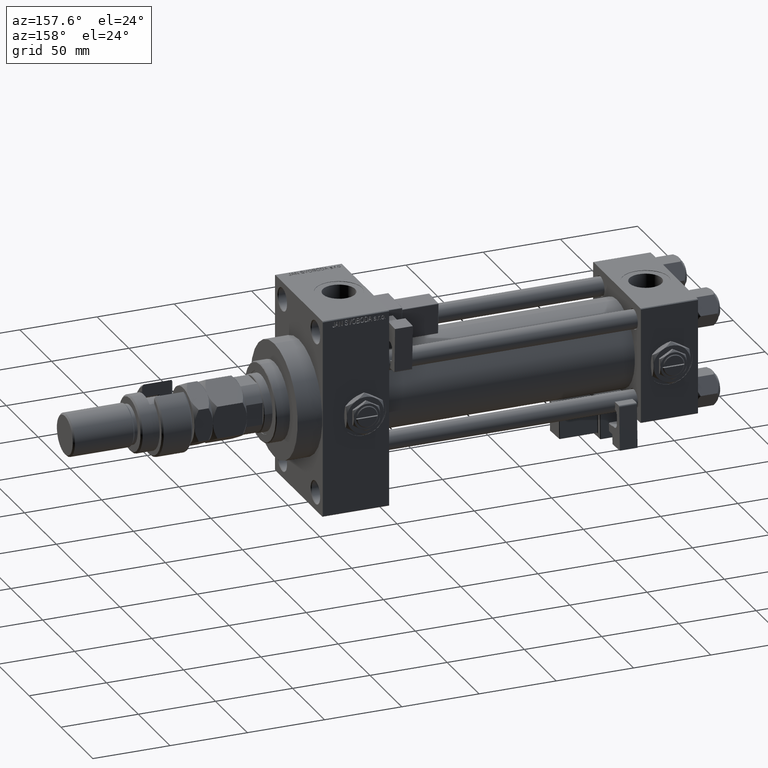
[diagram: clean part render]
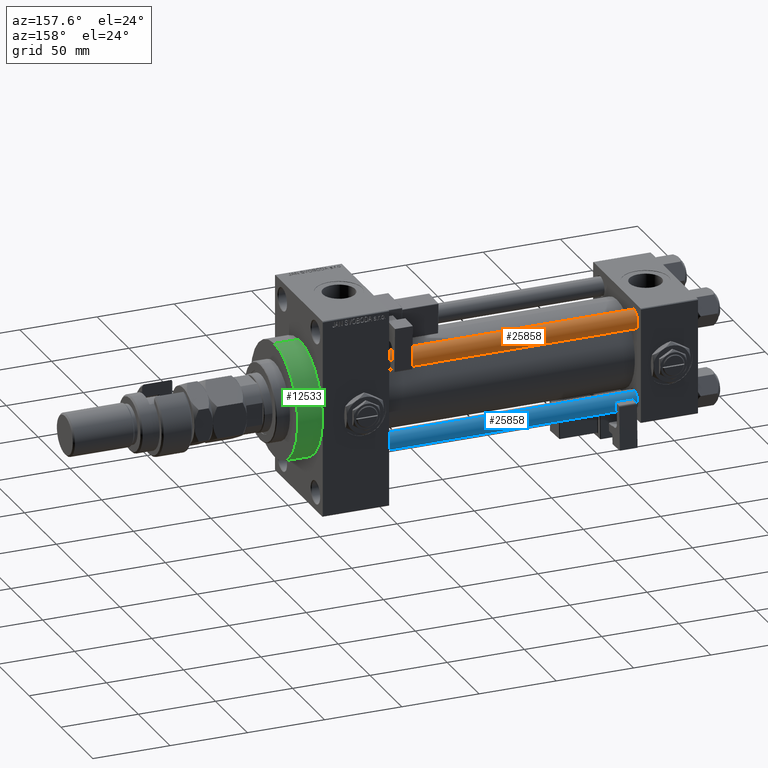
[diagram: same view with three faces highlighted in distinct colors, each labeled with its STEP entity id]
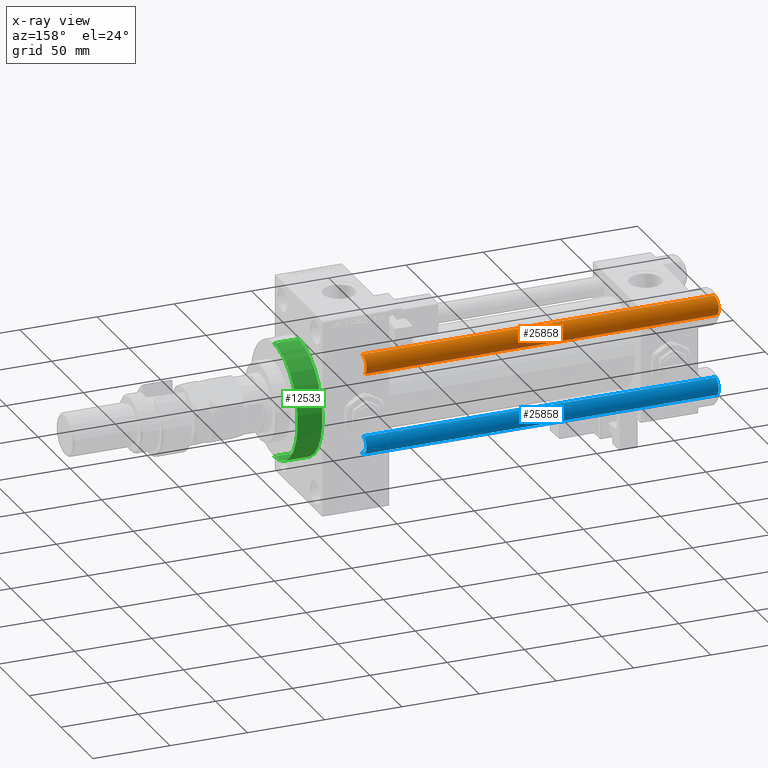
[diagram: x-ray of the same camera — body ghosted, the three highlighted faces saturated]
A machine part, auxiliary view with three faces highlighted in distinct colors.
The next image is the same camera in x-ray (body ghosted, the three faces saturated) — at least one of them is partly hidden behind the body in this view.
Their STEP definitions:

[orange] entity #25858 — the highlighted cylindrical surface (edge-blend (fillet) strip) has radius 6 mm, axis along (-1, -0, 0).
#2996 = VERTEX_POINT ( 'NONE', #53825 ) ;
#3474 = DIRECTION ( 'NONE',  ( 1.000000000000000000, 0.000000000000000000, 0.000000000000000000 ) ) ;
#3837 = CIRCLE ( 'NONE', #48616, 6.000000000000000888 ) ;
#5272 = AXIS2_PLACEMENT_3D ( 'NONE', #7165, #53376, #40715 ) ;
#7165 = CARTESIAN_POINT ( 'NONE',  ( 0.000000000000000000, 0.000000000000000000, 229.0000000000000000 ) ) ;
#8047 = ORIENTED_EDGE ( 'NONE', *, *, #52335, .T. ) ;
#9769 = VECTOR ( 'NONE', #27152, 1000.000000000000000 ) ;
#9774 = VERTEX_POINT ( 'NONE', #14322 ) ;
#12101 = FACE_OUTER_BOUND ( 'NONE', #40924, .T. ) ;
#13888 = LINE ( 'NONE', #34542, #22445 ) ;
#14322 = CARTESIAN_POINT ( 'NONE',  ( 6.000000000000000888, 7.347880794884119736E-16, 0.5000000000001392220 ) ) ;
#14913 = AXIS2_PLACEMENT_3D ( 'NONE', #24605, #42173, #29536 ) ;
#15026 = CARTESIAN_POINT ( 'NONE',  ( -6.000000000000000888, 0.000000000000000000, 229.0000000000000000 ) ) ;
#16337 = CARTESIAN_POINT ( 'NONE',  ( -6.000000000000000888, 0.000000000000000000, 228.5000000000001137 ) ) ;
#20555 = CARTESIAN_POINT ( 'NONE',  ( 6.000000000000000888, 7.347880794884119736E-16, 228.5000000000001137 ) ) ;
#21238 = VERTEX_POINT ( 'NONE', #16337 ) ;
#22445 = VECTOR ( 'NONE', #51602, 1000.000000000000000 ) ;
#22493 = VERTEX_POINT ( 'NONE', #20555 ) ;
#24605 = CARTESIAN_POINT ( 'NONE',  ( 0.000000000000000000, 0.000000000000000000, 228.5000000000001137 ) ) ;
#25858 = ADVANCED_FACE ( 'NONE', ( #12101 ), #44855, .T. ) ;
#27152 = DIRECTION ( 'NONE',  ( -0.000000000000000000, -0.000000000000000000, -1.000000000000000000 ) ) ;
#27220 = CIRCLE ( 'NONE', #14913, 6.000000000000000888 ) ;
#28331 = EDGE_CURVE ( 'NONE', #21238, #2996, #52736, .T. ) ;
#29536 = DIRECTION ( 'NONE',  ( 1.000000000000000000, 0.000000000000000000, 0.000000000000000000 ) ) ;
#32989 = ORIENTED_EDGE ( 'NONE', *, *, #28331, .F. ) ;
#34542 = CARTESIAN_POINT ( 'NONE',  ( 6.000000000000000888, 7.347880794884119736E-16, 229.0000000000000000 ) ) ;
#35511 = ORIENTED_EDGE ( 'NONE', *, *, #37177, .T. ) ;
#37016 = DIRECTION ( 'NONE',  ( -0.000000000000000000, -0.000000000000000000, 1.000000000000000000 ) ) ;
#37177 = EDGE_CURVE ( 'NONE', #21238, #22493, #27220, .T. ) ;
#40715 = DIRECTION ( 'NONE',  ( -1.000000000000000000, 0.000000000000000000, 0.000000000000000000 ) ) ;
#40924 = EDGE_LOOP ( 'NONE', ( #35511, #8047, #42233, #32989 ) ) ;
#41675 = CARTESIAN_POINT ( 'NONE',  ( 0.000000000000000000, 0.000000000000000000, 0.5000000000001392220 ) ) ;
#42173 = DIRECTION ( 'NONE',  ( 0.000000000000000000, 0.000000000000000000, -1.000000000000000000 ) ) ;
#42233 = ORIENTED_EDGE ( 'NONE', *, *, #43626, .T. ) ;
#43626 = EDGE_CURVE ( 'NONE', #9774, #2996, #3837, .T. ) ;
#44855 = CYLINDRICAL_SURFACE ( 'NONE', #5272, 6.000000000000000888 ) ;
#48616 = AXIS2_PLACEMENT_3D ( 'NONE', #41675, #37016, #3474 ) ;
#51602 = DIRECTION ( 'NONE',  ( -0.000000000000000000, -0.000000000000000000, -1.000000000000000000 ) ) ;
#52335 = EDGE_CURVE ( 'NONE', #22493, #9774, #13888, .T. ) ;
#52736 = LINE ( 'NONE', #15026, #9769 ) ;
#53376 = DIRECTION ( 'NONE',  ( -0.000000000000000000, -0.000000000000000000, -1.000000000000000000 ) ) ;
#53825 = CARTESIAN_POINT ( 'NONE',  ( -6.000000000000000888, 0.000000000000000000, 0.5000000000001392220 ) ) ;

[blue] entity #25858 — the highlighted cylindrical surface (edge-blend (fillet) strip) has radius 6 mm, axis along (1, -0, 0).
#2996 = VERTEX_POINT ( 'NONE', #53825 ) ;
#3474 = DIRECTION ( 'NONE',  ( 1.000000000000000000, 0.000000000000000000, 0.000000000000000000 ) ) ;
#3837 = CIRCLE ( 'NONE', #48616, 6.000000000000000888 ) ;
#5272 = AXIS2_PLACEMENT_3D ( 'NONE', #7165, #53376, #40715 ) ;
#7165 = CARTESIAN_POINT ( 'NONE',  ( 0.000000000000000000, 0.000000000000000000, 229.0000000000000000 ) ) ;
#8047 = ORIENTED_EDGE ( 'NONE', *, *, #52335, .T. ) ;
#9769 = VECTOR ( 'NONE', #27152, 1000.000000000000000 ) ;
#9774 = VERTEX_POINT ( 'NONE', #14322 ) ;
#12101 = FACE_OUTER_BOUND ( 'NONE', #40924, .T. ) ;
#13888 = LINE ( 'NONE', #34542, #22445 ) ;
#14322 = CARTESIAN_POINT ( 'NONE',  ( 6.000000000000000888, 7.347880794884119736E-16, 0.5000000000001392220 ) ) ;
#14913 = AXIS2_PLACEMENT_3D ( 'NONE', #24605, #42173, #29536 ) ;
#15026 = CARTESIAN_POINT ( 'NONE',  ( -6.000000000000000888, 0.000000000000000000, 229.0000000000000000 ) ) ;
#16337 = CARTESIAN_POINT ( 'NONE',  ( -6.000000000000000888, 0.000000000000000000, 228.5000000000001137 ) ) ;
#20555 = CARTESIAN_POINT ( 'NONE',  ( 6.000000000000000888, 7.347880794884119736E-16, 228.5000000000001137 ) ) ;
#21238 = VERTEX_POINT ( 'NONE', #16337 ) ;
#22445 = VECTOR ( 'NONE', #51602, 1000.000000000000000 ) ;
#22493 = VERTEX_POINT ( 'NONE', #20555 ) ;
#24605 = CARTESIAN_POINT ( 'NONE',  ( 0.000000000000000000, 0.000000000000000000, 228.5000000000001137 ) ) ;
#25858 = ADVANCED_FACE ( 'NONE', ( #12101 ), #44855, .T. ) ;
#27152 = DIRECTION ( 'NONE',  ( -0.000000000000000000, -0.000000000000000000, -1.000000000000000000 ) ) ;
#27220 = CIRCLE ( 'NONE', #14913, 6.000000000000000888 ) ;
#28331 = EDGE_CURVE ( 'NONE', #21238, #2996, #52736, .T. ) ;
#29536 = DIRECTION ( 'NONE',  ( 1.000000000000000000, 0.000000000000000000, 0.000000000000000000 ) ) ;
#32989 = ORIENTED_EDGE ( 'NONE', *, *, #28331, .F. ) ;
#34542 = CARTESIAN_POINT ( 'NONE',  ( 6.000000000000000888, 7.347880794884119736E-16, 229.0000000000000000 ) ) ;
#35511 = ORIENTED_EDGE ( 'NONE', *, *, #37177, .T. ) ;
#37016 = DIRECTION ( 'NONE',  ( -0.000000000000000000, -0.000000000000000000, 1.000000000000000000 ) ) ;
#37177 = EDGE_CURVE ( 'NONE', #21238, #22493, #27220, .T. ) ;
#40715 = DIRECTION ( 'NONE',  ( -1.000000000000000000, 0.000000000000000000, 0.000000000000000000 ) ) ;
#40924 = EDGE_LOOP ( 'NONE', ( #35511, #8047, #42233, #32989 ) ) ;
#41675 = CARTESIAN_POINT ( 'NONE',  ( 0.000000000000000000, 0.000000000000000000, 0.5000000000001392220 ) ) ;
#42173 = DIRECTION ( 'NONE',  ( 0.000000000000000000, 0.000000000000000000, -1.000000000000000000 ) ) ;
#42233 = ORIENTED_EDGE ( 'NONE', *, *, #43626, .T. ) ;
#43626 = EDGE_CURVE ( 'NONE', #9774, #2996, #3837, .T. ) ;
#44855 = CYLINDRICAL_SURFACE ( 'NONE', #5272, 6.000000000000000888 ) ;
#48616 = AXIS2_PLACEMENT_3D ( 'NONE', #41675, #37016, #3474 ) ;
#51602 = DIRECTION ( 'NONE',  ( -0.000000000000000000, -0.000000000000000000, -1.000000000000000000 ) ) ;
#52335 = EDGE_CURVE ( 'NONE', #22493, #9774, #13888, .T. ) ;
#52736 = LINE ( 'NONE', #15026, #9769 ) ;
#53376 = DIRECTION ( 'NONE',  ( -0.000000000000000000, -0.000000000000000000, -1.000000000000000000 ) ) ;
#53825 = CARTESIAN_POINT ( 'NONE',  ( -6.000000000000000888, 0.000000000000000000, 0.5000000000001392220 ) ) ;

[green] entity #12533 — the highlighted cylindrical surface (partial cylindrical patch) has radius 37 mm, axis along (-1, -0, -0).
#2051 = CYLINDRICAL_SURFACE ( 'NONE', #5968, 37.00000000000000000 ) ;
#4820 = CARTESIAN_POINT ( 'NONE',  ( 259.0000000000000000, 4.531193156845206793E-15, -37.00000000000000000 ) ) ;
#4999 = ORIENTED_EDGE ( 'NONE', *, *, #46738, .F. ) ;
#5968 = AXIS2_PLACEMENT_3D ( 'NONE', #32018, #23214, #19079 ) ;
#7856 = ORIENTED_EDGE ( 'NONE', *, *, #38817, .T. ) ;
#9054 = AXIS2_PLACEMENT_3D ( 'NONE', #25665, #9677, #22622 ) ;
#9677 = DIRECTION ( 'NONE',  ( 1.000000000000000000, 0.000000000000000000, 0.000000000000000000 ) ) ;
#10811 = VERTEX_POINT ( 'NONE', #31756 ) ;
#11136 = LINE ( 'NONE', #27097, #38630 ) ;
#12533 = ADVANCED_FACE ( 'NONE', ( #23490 ), #2051, .T. ) ;
#16084 = CIRCLE ( 'NONE', #9054, 37.00000000000000000 ) ;
#19079 = DIRECTION ( 'NONE',  ( 0.000000000000000000, 0.000000000000000000, 1.000000000000000000 ) ) ;
#20793 = DIRECTION ( 'NONE',  ( -1.000000000000000000, -0.000000000000000000, -0.000000000000000000 ) ) ;
#20970 = CARTESIAN_POINT ( 'NONE',  ( 259.0000000000000000, 4.531193156845206793E-15, -37.00000000000000000 ) ) ;
#21021 = ORIENTED_EDGE ( 'NONE', *, *, #37035, .F. ) ;
#22622 = DIRECTION ( 'NONE',  ( 0.000000000000000000, 0.000000000000000000, -1.000000000000000000 ) ) ;
#23214 = DIRECTION ( 'NONE',  ( -1.000000000000000000, -0.000000000000000000, -0.000000000000000000 ) ) ;
#23490 = FACE_OUTER_BOUND ( 'NONE', #26391, .T. ) ;
#23788 = DIRECTION ( 'NONE',  ( -1.000000000000000000, -0.000000000000000000, -0.000000000000000000 ) ) ;
#24095 = VERTEX_POINT ( 'NONE', #20970 ) ;
#25665 = CARTESIAN_POINT ( 'NONE',  ( 259.0000000000000000, 0.000000000000000000, 0.000000000000000000 ) ) ;
#26391 = EDGE_LOOP ( 'NONE', ( #4999, #41990, #7856, #21021 ) ) ;
#26677 = VERTEX_POINT ( 'NONE', #53980 ) ;
#27097 = CARTESIAN_POINT ( 'NONE',  ( 259.0000000000000000, 0.000000000000000000, 37.00000000000000000 ) ) ;
#27339 = AXIS2_PLACEMENT_3D ( 'NONE', #46192, #28620, #42055 ) ;
#28620 = DIRECTION ( 'NONE',  ( 1.000000000000000000, 0.000000000000000000, 0.000000000000000000 ) ) ;
#31756 = CARTESIAN_POINT ( 'NONE',  ( 259.0000000000000000, 0.000000000000000000, 37.00000000000000000 ) ) ;
#32018 = CARTESIAN_POINT ( 'NONE',  ( 259.0000000000000000, 0.000000000000000000, 0.000000000000000000 ) ) ;
#37035 = EDGE_CURVE ( 'NONE', #10811, #50276, #11136, .T. ) ;
#38371 = LINE ( 'NONE', #4820, #52900 ) ;
#38630 = VECTOR ( 'NONE', #23788, 1000.000000000000000 ) ;
#38817 = EDGE_CURVE ( 'NONE', #26677, #50276, #49304, .T. ) ;
#41990 = ORIENTED_EDGE ( 'NONE', *, *, #42241, .T. ) ;
#42055 = DIRECTION ( 'NONE',  ( 0.000000000000000000, 0.000000000000000000, -1.000000000000000000 ) ) ;
#42241 = EDGE_CURVE ( 'NONE', #24095, #26677, #38371, .T. ) ;
#46192 = CARTESIAN_POINT ( 'NONE',  ( 243.0000000000000000, 0.000000000000000000, 0.000000000000000000 ) ) ;
#46738 = EDGE_CURVE ( 'NONE', #24095, #10811, #16084, .T. ) ;
#49304 = CIRCLE ( 'NONE', #27339, 37.00000000000000000 ) ;
#50276 = VERTEX_POINT ( 'NONE', #50606 ) ;
#50606 = CARTESIAN_POINT ( 'NONE',  ( 243.0000000000000000, 0.000000000000000000, 37.00000000000000000 ) ) ;
#52900 = VECTOR ( 'NONE', #20793, 1000.000000000000000 ) ;
#53980 = CARTESIAN_POINT ( 'NONE',  ( 243.0000000000000000, 4.531193156845206793E-15, -37.00000000000000000 ) ) ;